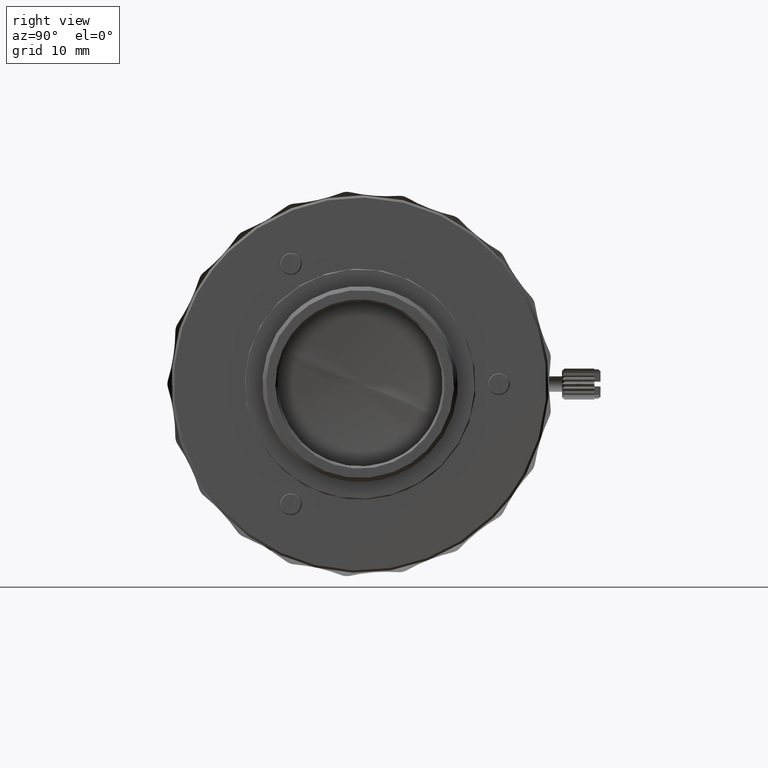
[diagram: clean part render]
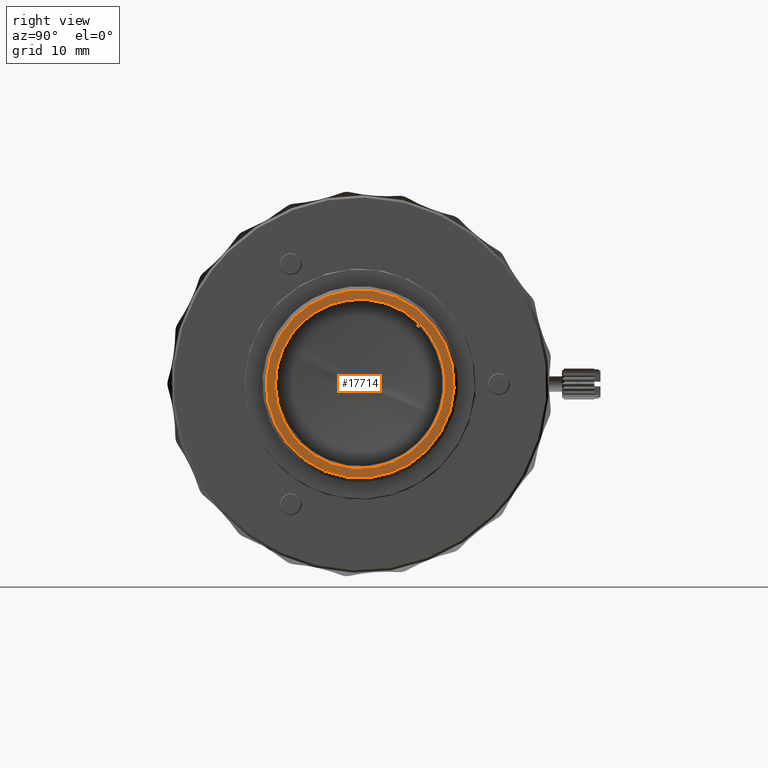
[diagram: same view with one face highlighted and labeled with its STEP entity id]
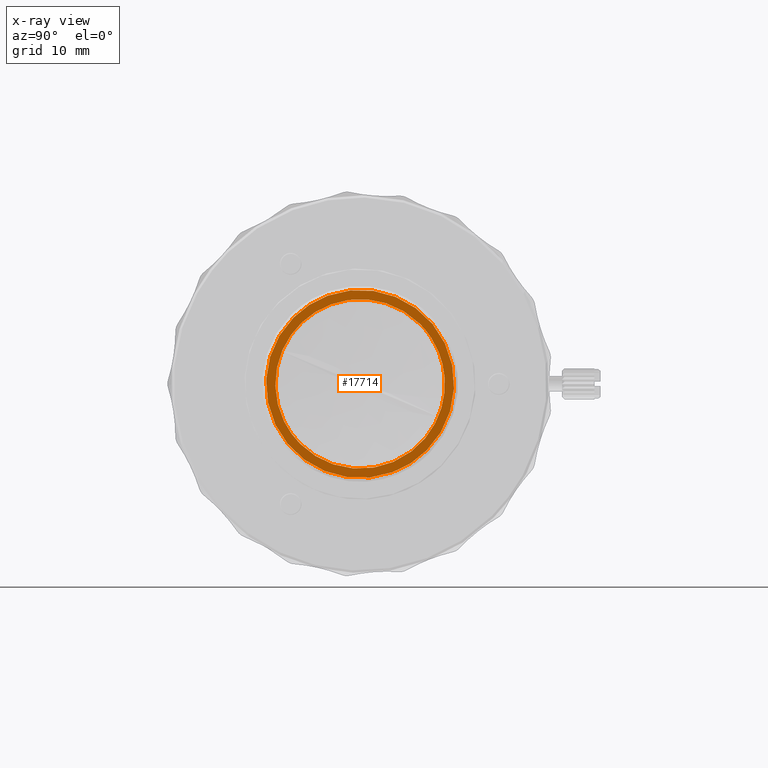
[diagram: x-ray of the same camera — body ghosted, the highlighted face saturated]
A machine part, right view. The second image highlights one B-rep face of the part: STEP entity #17714.
The next image is the same camera in x-ray: the body ghosted, the highlighted face saturated — about 0% of this face is hidden behind the body in this view.
In plain terms, the highlighted face is a freeform B-spline surface patch.
Its self-contained STEP definition (entity closure, byte-faithful):
#373 = CARTESIAN_POINT ( 'NONE',  ( 51.85000000000000853, -5.408823985080251084, -10.96477660524013942 ) ) ;
#664 = CARTESIAN_POINT ( 'NONE',  ( 51.85000000000000142, -6.111896961895087799, -10.58897625124690656 ) ) ;
#944 = CARTESIAN_POINT ( 'NONE',  ( 51.85000000000000853, -11.80930069110499048, 3.165773113987831788 ) ) ;
#1526 = CARTESIAN_POINT ( 'NONE',  ( 51.84999999999998010, -10.96477659359983292, -5.408823973439959687 ) ) ;
#2776 = CARTESIAN_POINT ( 'NONE',  ( 51.84999999812053062, -3.221825408164812998, 12.33452377704622727 ) ) ;
#2869 = CARTESIAN_POINT ( 'NONE',  ( 51.84999999999998721, -3.165773125628135176, 11.80930070274528276 ) ) ;
#3174 = CARTESIAN_POINT ( 'NONE',  ( 51.85000000000000853, 11.57788400960432895, 3.928651791983091002 ) ) ;
#4756 =( BOUNDED_CURVE ( )  B_SPLINE_CURVE ( 3, ( #17838, #44006, #53373, #52218 ),
 .UNSPECIFIED., .F., .F. ) 
 B_SPLINE_CURVE_WITH_KNOTS ( ( 4, 4 ),
 ( 0.0000000000000000000, 1.000000000000000000 ),
 .UNSPECIFIED. ) 
 CURVE ( )  GEOMETRIC_REPRESENTATION_ITEM ( )  RATIONAL_B_SPLINE_CURVE ( ( 1.000000000000000000, 0.3333333333333341475, 0.3333333333333341475, 1.000000000000000000 ) ) 
 REPRESENTATION_ITEM ( '' )  );
#4890 = EDGE_CURVE ( 'NONE', #55991, #25884, #18731, .T. ) ;
#5659 = CARTESIAN_POINT ( 'NONE',  ( 51.85000000000000142, -9.698882297839700684, 7.444016734258704915 ) ) ;
#6615 = CARTESIAN_POINT ( 'NONE',  ( 51.84999999937350168, -7.778174588517020815, -7.778174592771230245 ) ) ;
#6996 = CARTESIAN_POINT ( 'NONE',  ( 51.85000000000000142, 3.165773113987833565, 11.80930069110498870 ) ) ;
#7214 = FACE_OUTER_BOUND ( 'NONE', #13802, .T. ) ;
#7293 = CARTESIAN_POINT ( 'NONE',  ( 51.85000000000000853, -0.8010634169580787001, 12.20000000320714584 ) ) ;
#7503 = CARTESIAN_POINT ( 'NONE',  ( 51.84999999812061589, -12.33452377638542075, -3.221825410694663105 ) ) ;
#7790 = CARTESIAN_POINT ( 'NONE',  ( 51.84999999937350168, 7.778174591109750402, 7.778174590178509540 ) ) ;
#7880 = CARTESIAN_POINT ( 'NONE',  ( 51.85000000000003695, 11.57788399796402601, -3.928651780342808486 ) ) ;
#9200 = CARTESIAN_POINT ( 'NONE',  ( 51.85000000000000853, -7.444016734258703138, -9.698882297839702460 ) ) ;
#9786 = CARTESIAN_POINT ( 'NONE',  ( 51.85000000000000142, 8.626702726293610013, -8.626702731011919312 ) ) ;
#11581 = ORIENTED_EDGE ( 'NONE', *, *, #4890, .F. ) ;
#11694 = CARTESIAN_POINT ( 'NONE',  ( 51.85000000000000142, 5.408823985080256413, 10.96477660524013764 ) ) ;
#12254 = CARTESIAN_POINT ( 'NONE',  ( 51.85000000000000142, -8.626702729169180017, 8.626702728136359966 ) ) ;
#12283 = CARTESIAN_POINT ( 'NONE',  ( 51.85000000000000142, 8.626702726293610013, -8.626702731011919312 ) ) ;
#13210 = EDGE_CURVE ( 'NONE', #38144, #38533, #13688, .T. ) ;
#13688 = B_SPLINE_CURVE_WITH_KNOTS ( 'NONE', 3,
 ( #12283, #48126, #33723, #34018, #25785, #7880, #47536, #51919, #25200, #47835, #56026, #43711, #3174, #21097, #47242, #21384, #56320, #43127, #39313, #29913, #11694, #34905, #6996, #29611, #57193, #7293, #20216, #2869, #16971, #52793, #42823, #56902, #24902, #15801 ),
 .UNSPECIFIED., .F., .F.,
 ( 4, 2, 2, 2, 2, 2, 2, 2, 2, 2, 2, 2, 2, 2, 2, 2, 4 ),
 ( 0.0000000000000000000, 0.1963495408493622640, 0.3926990816987245281, 0.5890486225480867644, 0.7853981633974488341, 0.9817477042468110149, 1.178097245096173307, 1.374446785945535598, 1.570796326794897668, 1.767145867644259960, 1.963495408493622030, 2.159844949342984322, 2.356194490192346613, 2.552544031041708905, 2.748893571891071197, 2.945243112740433489, 3.141592653589795336 ),
 .UNSPECIFIED. ) ;
#13802 = EDGE_LOOP ( 'NONE', ( #57244, #22400 ) ) ;
#13881 = CARTESIAN_POINT ( 'NONE',  ( 51.85000000000000853, 3.928651791983091002, -11.57788400960432718 ) ) ;
#14166 = CARTESIAN_POINT ( 'NONE',  ( 51.85000000000000853, -9.698882286199406622, -7.444016722618402859 ) ) ;
#14462 = CARTESIAN_POINT ( 'NONE',  ( 51.84999999999999432, -12.12186012914641609, -1.594430711506974685 ) ) ;
#15801 = CARTESIAN_POINT ( 'NONE',  ( 51.85000000000000142, -8.626702729169180017, 8.626702728136359966 ) ) ;
#16971 = CARTESIAN_POINT ( 'NONE',  ( 51.85000000000000142, -3.928651791983092778, 11.57788400960432540 ) ) ;
#17714 = ADVANCED_FACE ( 'NONE', ( #33941, #7214 ), #43314, .F. ) ;
#17838 = CARTESIAN_POINT ( 'NONE',  ( 51.84999999937350168, -7.778174588517020815, -7.778174592771230245 ) ) ;
#18731 =( BOUNDED_CURVE ( )  B_SPLINE_CURVE ( 3, ( #7790, #38066, #2776, #21012, #51549, #7503, #6615 ),
 .UNSPECIFIED., .F., .T. ) 
 B_SPLINE_CURVE_WITH_KNOTS ( ( 4, 3, 4 ),
 ( -3.141592653589795336, -1.570796326794897668, 0.0000000000000000000 ),
 .UNSPECIFIED. ) 
 CURVE ( )  GEOMETRIC_REPRESENTATION_ITEM ( )  RATIONAL_B_SPLINE_CURVE ( ( 1.000000000000000000, 0.8047378540760217192, 0.8047378540760217192, 1.000000000000000000, 0.8047378540760217192, 0.8047378540760217192, 1.000000000000000000 ) ) 
 REPRESENTATION_ITEM ( '' )  );
#18891 = CARTESIAN_POINT ( 'NONE',  ( 51.85000000000001563, -11.57788399796402246, 3.928651780342808486 ) ) ;
#19181 = CARTESIAN_POINT ( 'NONE',  ( 51.85000000000000853, -12.12186014078671192, 1.594430723147269413 ) ) ;
#19470 = CARTESIAN_POINT ( 'NONE',  ( 51.85000000000000853, -8.060265348578885991, -9.193140103337734459 ) ) ;
#20216 = CARTESIAN_POINT ( 'NONE',  ( 51.85000000000000142, -1.594430711506965359, 12.12186012914641609 ) ) ;
#21012 = CARTESIAN_POINT ( 'NONE',  ( 51.84999999812056615, -7.778174593266326653, 7.778174590075668249 ) ) ;
#21097 = CARTESIAN_POINT ( 'NONE',  ( 51.85000000000000142, 10.96477659359983825, 5.408823973439958799 ) ) ;
#21384 = CARTESIAN_POINT ( 'NONE',  ( 51.85000000000000853, 9.698882286199404845, 7.444016722618399307 ) ) ;
#22400 = ORIENTED_EDGE ( 'NONE', *, *, #26891, .T. ) ;
#22991 = CARTESIAN_POINT ( 'NONE',  ( 51.85000000000000142, 1.594430711506964249, -12.12186012914641786 ) ) ;
#23565 = CARTESIAN_POINT ( 'NONE',  ( 51.85000000000000853, -9.193140103337730906, -8.060265348578885991 ) ) ;
#23858 = CARTESIAN_POINT ( 'NONE',  ( 51.84999999999998721, 0.8010634169580788111, -12.20000000320714584 ) ) ;
#24427 = B_SPLINE_CURVE_WITH_KNOTS ( 'NONE', 3,
 ( #36231, #45621, #5659, #41217, #40928, #18891, #944, #19181, #50016, #54688, #14462, #31821, #36820, #1526, #49438, #14166, #23565, #19470, #9200, #664, #373, #37116, #28282, #37408, #54124, #23858, #22991, #27993, #13881, #55271, #31544, #46201, #27121, #9786 ),
 .UNSPECIFIED., .F., .F.,
 ( 4, 2, 2, 2, 2, 2, 2, 2, 2, 2, 2, 2, 2, 2, 2, 2, 4 ),
 ( 0.0000000000000000000, 0.1963495408493622640, 0.3926990816987245281, 0.5890486225480867644, 0.7853981633974488341, 0.9817477042468110149, 1.178097245096173085, 1.374446785945535376, 1.570796326794897668, 1.767145867644259960, 1.963495408493622030, 2.159844949342984322, 2.356194490192346613, 2.552544031041708905, 2.748893571891071197, 2.945243112740433489, 3.141592653589795336 ),
 .UNSPECIFIED. ) ;
#24791 = ORIENTED_EDGE ( 'NONE', *, *, #54443, .F. ) ;
#24902 = CARTESIAN_POINT ( 'NONE',  ( 51.84999999999998010, -8.060265348578880662, 9.193140103337738012 ) ) ;
#25200 = CARTESIAN_POINT ( 'NONE',  ( 51.85000000000000142, 12.20000000320714229, -0.8010634169580853614 ) ) ;
#25415 = CARTESIAN_POINT ( 'NONE',  ( 51.85000000000000142, 17.46044632599999957, 0.0000000000000000000 ) ) ;
#25785 = CARTESIAN_POINT ( 'NONE',  ( 51.85000000000000853, 10.96477660524013942, -5.408823985080242203 ) ) ;
#25884 = VERTEX_POINT ( 'NONE', #42139 ) ;
#26891 = EDGE_CURVE ( 'NONE', #38533, #38144, #24427, .T. ) ;
#27121 = CARTESIAN_POINT ( 'NONE',  ( 51.84999999999998721, 8.060265348578880662, -9.193140103337734459 ) ) ;
#27993 = CARTESIAN_POINT ( 'NONE',  ( 51.84999999999999432, 3.165773125628134732, -11.80930070274528632 ) ) ;
#28282 = CARTESIAN_POINT ( 'NONE',  ( 51.85000000000000142, -3.165773113987833565, -11.80930069110498870 ) ) ;
#29611 = CARTESIAN_POINT ( 'NONE',  ( 51.85000000000000142, 1.594430723147268081, 12.12186014078671725 ) ) ;
#29913 = CARTESIAN_POINT ( 'NONE',  ( 51.85000000000000142, 6.111896961895087799, 10.58897625124690478 ) ) ;
#31544 = CARTESIAN_POINT ( 'NONE',  ( 51.85000000000000142, 6.111896973535382749, -10.58897626288720772 ) ) ;
#31821 = CARTESIAN_POINT ( 'NONE',  ( 51.84999999999998721, -11.80930070274528987, -3.165773125628127183 ) ) ;
#33723 = CARTESIAN_POINT ( 'NONE',  ( 51.85000000000000142, 9.698882297839700684, -7.444016734258704915 ) ) ;
#33941 = FACE_BOUND ( 'NONE', #37690, .T. ) ;
#34018 = CARTESIAN_POINT ( 'NONE',  ( 51.85000000000000142, 10.58897625124690656, -6.111896961895087799 ) ) ;
#34905 = CARTESIAN_POINT ( 'NONE',  ( 51.84999999999998010, 3.928651780342796496, 11.57788399796402423 ) ) ;
#36231 = CARTESIAN_POINT ( 'NONE',  ( 51.85000000000000142, -8.626702729169180017, 8.626702728136359966 ) ) ;
#36820 = CARTESIAN_POINT ( 'NONE',  ( 51.85000000000000853, -11.57788400960432895, -3.928651791983091890 ) ) ;
#37116 = CARTESIAN_POINT ( 'NONE',  ( 51.85000000000000853, -3.928651780342796496, -11.57788399796402601 ) ) ;
#37408 = CARTESIAN_POINT ( 'NONE',  ( 51.84999999999998721, -1.594430723147267637, -12.12186014078671548 ) ) ;
#37690 = EDGE_LOOP ( 'NONE', ( #24791, #11581 ) ) ;
#38066 = CARTESIAN_POINT ( 'NONE',  ( 51.84999999812051641, 3.221825405634962003, 12.33452377770703556 ) ) ;
#38144 = VERTEX_POINT ( 'NONE', #50290 ) ;
#38533 = VERTEX_POINT ( 'NONE', #12254 ) ;
#39313 = CARTESIAN_POINT ( 'NONE',  ( 51.85000000000000142, 7.444016734258704027, 9.698882297839702460 ) ) ;
#40928 = CARTESIAN_POINT ( 'NONE',  ( 51.85000000000000142, -10.96477660524014119, 5.408823985080240426 ) ) ;
#41217 = CARTESIAN_POINT ( 'NONE',  ( 51.85000000000001563, -10.58897625124690656, 6.111896961895085134 ) ) ;
#42139 = CARTESIAN_POINT ( 'NONE',  ( 51.84999999937350168, -7.778174588517020815, -7.778174592771230245 ) ) ;
#42823 = CARTESIAN_POINT ( 'NONE',  ( 51.85000000000000142, -6.111896973535380084, 10.58897626288720595 ) ) ;
#43127 = CARTESIAN_POINT ( 'NONE',  ( 51.85000000000000142, 8.060265348578885991, 9.193140103337729130 ) ) ;
#43314 = B_SPLINE_SURFACE_WITH_KNOTS ( 'NONE', 1, 1, ( 
 ( #47758, #25415 ),
 ( #56529, #52995 ) ),
 .UNSPECIFIED., .F., .F., .F.,
 ( 2, 2 ),
 ( 2, 2 ),
 ( 0.0000000000000000000, 1.000000000000000000 ),
 ( 0.0000000000000000000, 1.000000000000000000 ),
 .UNSPECIFIED. ) ;
#43711 = CARTESIAN_POINT ( 'NONE',  ( 51.84999999999998721, 11.80930070274528632, 3.165773125628127627 ) ) ;
#44006 = CARTESIAN_POINT ( 'NONE',  ( 51.84999999594199238, 7.778174590130703336, -23.33452377039202119 ) ) ;
#45621 = CARTESIAN_POINT ( 'NONE',  ( 51.85000000000001563, -9.193140103337727354, 8.060265348578893096 ) ) ;
#46201 = CARTESIAN_POINT ( 'NONE',  ( 51.84999999999998721, 7.444016722618410853, -9.698882286199401292 ) ) ;
#47242 = CARTESIAN_POINT ( 'NONE',  ( 51.85000000000000853, 10.58897626288720240, 6.111896973535388078 ) ) ;
#47536 = CARTESIAN_POINT ( 'NONE',  ( 51.85000000000001563, 11.80930069110499048, -3.165773113987831788 ) ) ;
#47758 = CARTESIAN_POINT ( 'NONE',  ( 51.85000000000000142, 0.0000000000000000000, -17.46044632599999957 ) ) ;
#47835 = CARTESIAN_POINT ( 'NONE',  ( 51.85000000000000142, 12.20000000320714406, 0.8010634169580830299 ) ) ;
#48126 = CARTESIAN_POINT ( 'NONE',  ( 51.85000000000001563, 9.193140103337729130, -8.060265348578891320 ) ) ;
#49438 = CARTESIAN_POINT ( 'NONE',  ( 51.85000000000000853, -10.58897626288720240, -6.111896973535387190 ) ) ;
#50016 = CARTESIAN_POINT ( 'NONE',  ( 51.85000000000000142, -12.20000000320714229, 0.8010634169580819197 ) ) ;
#50290 = CARTESIAN_POINT ( 'NONE',  ( 51.85000000000000142, 8.626702726293610013, -8.626702731011919312 ) ) ;
#51504 = CARTESIAN_POINT ( 'NONE',  ( 51.84999999937350168, 7.778174591109750402, 7.778174590178509540 ) ) ;
#51549 = CARTESIAN_POINT ( 'NONE',  ( 51.84999999812060167, -12.33452377836784208, 3.221825403105111008 ) ) ;
#51919 = CARTESIAN_POINT ( 'NONE',  ( 51.85000000000000853, 12.12186014078671192, -1.594430723147269413 ) ) ;
#52218 = CARTESIAN_POINT ( 'NONE',  ( 51.84999999937350168, 7.778174591109750402, 7.778174590178509540 ) ) ;
#52793 = CARTESIAN_POINT ( 'NONE',  ( 51.85000000000000853, -5.408823973439959687, 10.96477659359983292 ) ) ;
#52995 = CARTESIAN_POINT ( 'NONE',  ( 51.85000000000000142, 0.0000000000000000000, 17.46044632599999957 ) ) ;
#53373 = CARTESIAN_POINT ( 'NONE',  ( 51.84999999594219844, 23.33452377039204251, -7.778174590130653598 ) ) ;
#54124 = CARTESIAN_POINT ( 'NONE',  ( 51.84999999999998721, -0.8010634169580771458, -12.20000000320714406 ) ) ;
#54443 = EDGE_CURVE ( 'NONE', #25884, #55991, #4756, .T. ) ;
#54688 = CARTESIAN_POINT ( 'NONE',  ( 51.84999999999998721, -12.20000000320714406, -0.8010634169580842512 ) ) ;
#55271 = CARTESIAN_POINT ( 'NONE',  ( 51.85000000000000142, 5.408823973439957022, -10.96477659359983647 ) ) ;
#55991 = VERTEX_POINT ( 'NONE', #51504 ) ;
#56026 = CARTESIAN_POINT ( 'NONE',  ( 51.84999999999999432, 12.12186012914641609, 1.594430711506974685 ) ) ;
#56320 = CARTESIAN_POINT ( 'NONE',  ( 51.85000000000000853, 9.193140103337729130, 8.060265348578885991 ) ) ;
#56529 = CARTESIAN_POINT ( 'NONE',  ( 51.85000000000000142, -17.46044632599999957, 0.0000000000000000000 ) ) ;
#56902 = CARTESIAN_POINT ( 'NONE',  ( 51.85000000000000853, -7.444016722618410853, 9.698882286199401292 ) ) ;
#57193 = CARTESIAN_POINT ( 'NONE',  ( 51.85000000000000142, 0.8010634169580782560, 12.20000000320714229 ) ) ;
#57244 = ORIENTED_EDGE ( 'NONE', *, *, #13210, .T. ) ;